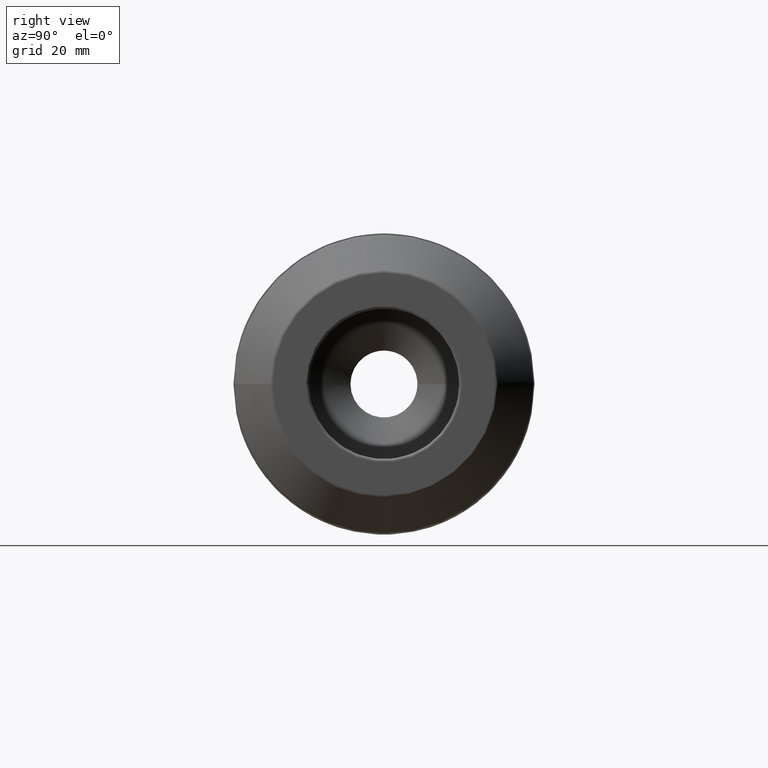
[diagram: clean part render]
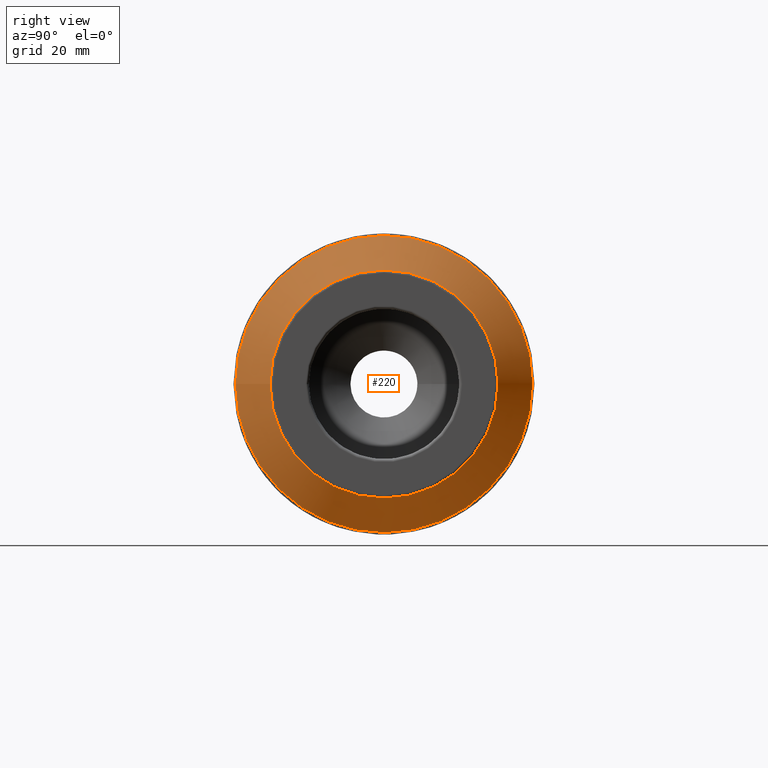
[diagram: same view with one face highlighted and labeled with its STEP entity id]
A machine part, right view. The second image highlights one B-rep face of the part: STEP entity #220.
In plain terms, the highlighted conical surface has half-angle 45 deg.
Its self-contained STEP definition (entity closure, byte-faithful):
#220 = ADVANCED_FACE( '', ( #508, #509 ), #510, .T. );
#508 = FACE_OUTER_BOUND( '', #879, .T. );
#509 = FACE_BOUND( '', #880, .T. );
#510 = CONICAL_SURFACE( '', #881, 30.2928932188135, 0.785398163397449 );
#879 = EDGE_LOOP( '', ( #1434 ) );
#880 = EDGE_LOOP( '', ( #1435 ) );
#881 = AXIS2_PLACEMENT_3D( '', #1436, #1437, #1438 );
#1434 = ORIENTED_EDGE( '', *, *, #2078, .F. );
#1435 = ORIENTED_EDGE( '', *, *, #2079, .T. );
#1436 = CARTESIAN_POINT( '', ( 109.707106781187, 0.000000000000000, 0.000000000000000 ) );
#1437 = DIRECTION( '', ( -1.00000000000000, -0.000000000000000, 0.000000000000000 ) );
#1438 = DIRECTION( '', ( 0.000000000000000, -1.00000000000000, 6.12323399573677E-017 ) );
#2078 = EDGE_CURVE( '', #2486, #2486, #2487, .T. );
#2079 = EDGE_CURVE( '', #2488, #2488, #2489, .T. );
#2486 = VERTEX_POINT( '', #3421 );
#2487 = CIRCLE( '', #3422, 39.4571067811866 );
#2488 = VERTEX_POINT( '', #3423 );
#2489 = CIRCLE( '', #3424, 30.2928932188135 );
#3421 = CARTESIAN_POINT( '', ( 100.542893218813, -39.4571067811866, 2.41605097615977E-015 ) );
#3422 = AXIS2_PLACEMENT_3D( '', #4336, #4337, #4338 );
#3423 = CARTESIAN_POINT( '', ( 109.707106781187, -30.2928932188135, 1.85490473586662E-015 ) );
#3424 = AXIS2_PLACEMENT_3D( '', #4339, #4340, #4341 );
#4336 = CARTESIAN_POINT( '', ( 100.542893218813, 0.000000000000000, 0.000000000000000 ) );
#4337 = DIRECTION( '', ( -1.00000000000000, 0.000000000000000, 0.000000000000000 ) );
#4338 = DIRECTION( '', ( 0.000000000000000, -1.00000000000000, 6.12323399573677E-017 ) );
#4339 = CARTESIAN_POINT( '', ( 109.707106781187, 0.000000000000000, 0.000000000000000 ) );
#4340 = DIRECTION( '', ( -1.00000000000000, 0.000000000000000, 0.000000000000000 ) );
#4341 = DIRECTION( '', ( 0.000000000000000, -1.00000000000000, 6.12323399573677E-017 ) );